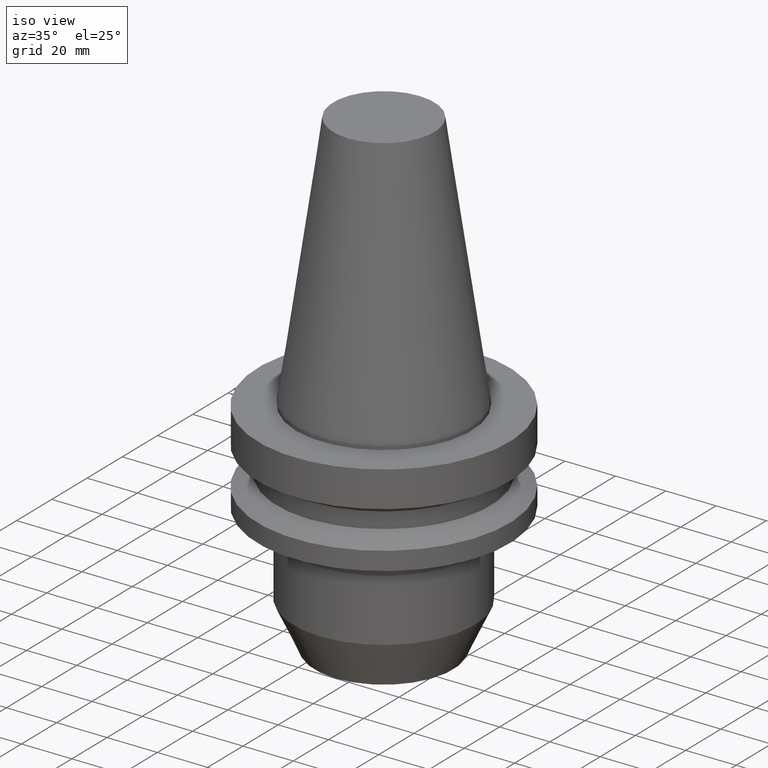
[diagram: clean part render]
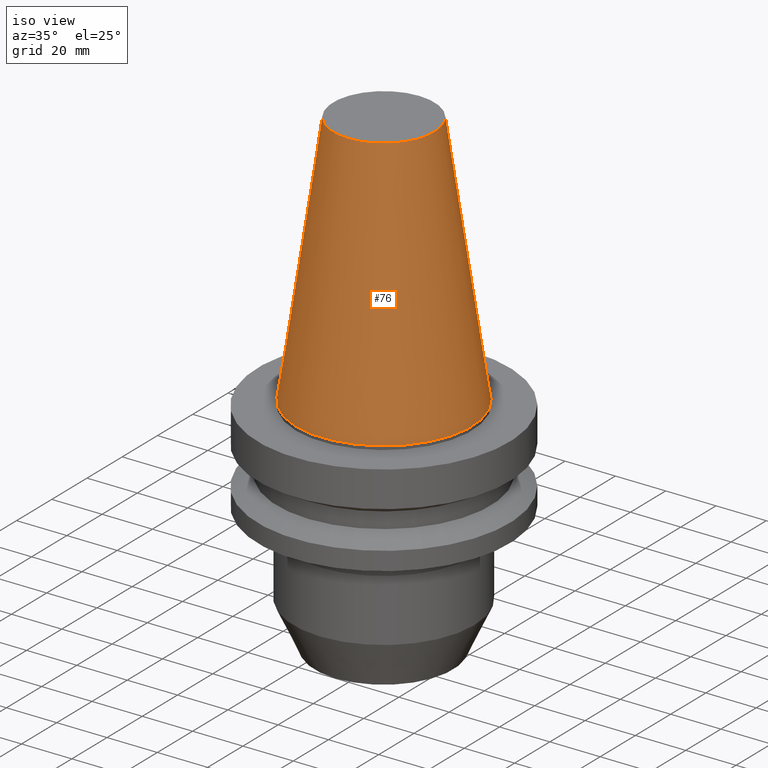
[diagram: tour spotlight — one face highlighted and labeled with its STEP entity id]
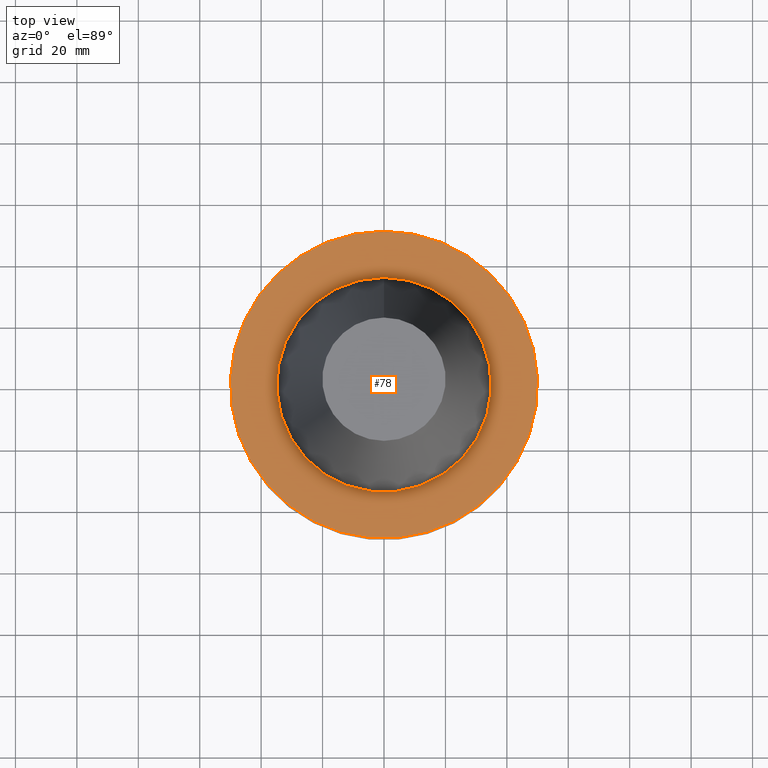
[diagram: tour spotlight — one face highlighted and labeled with its STEP entity id]
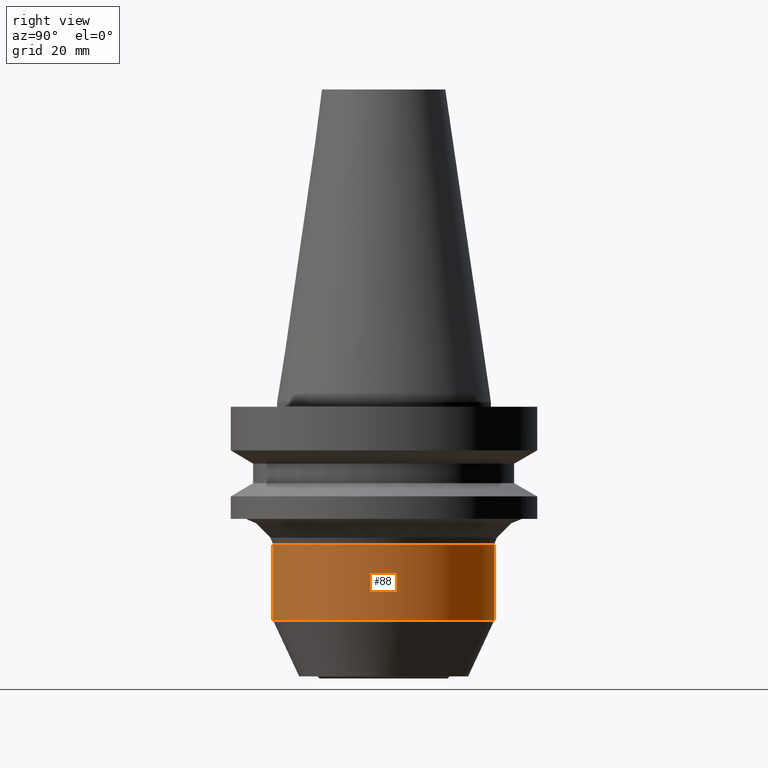
[diagram: tour spotlight — one face highlighted and labeled with its STEP entity id]
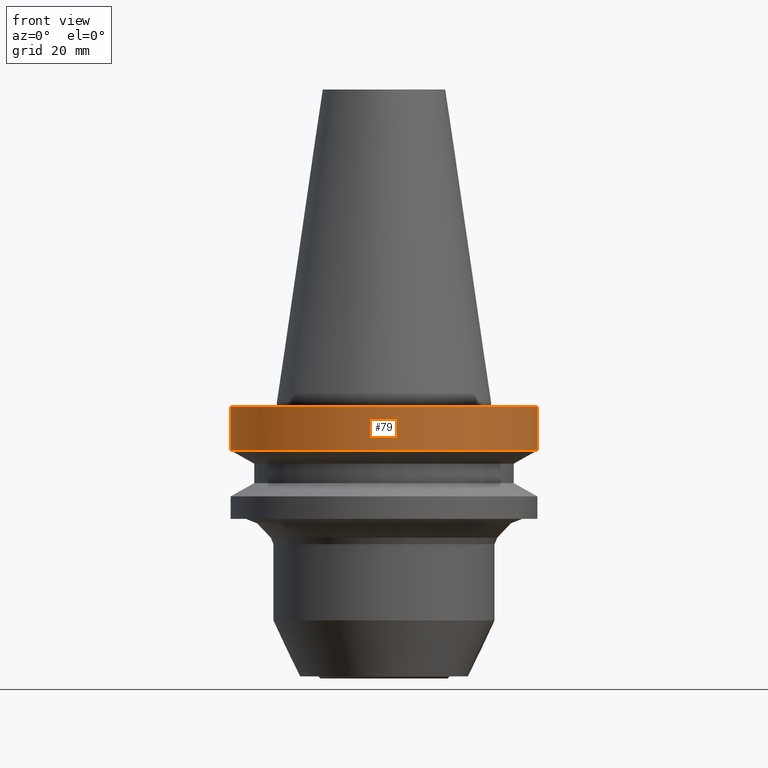
[diagram: tour spotlight — one face highlighted and labeled with its STEP entity id]
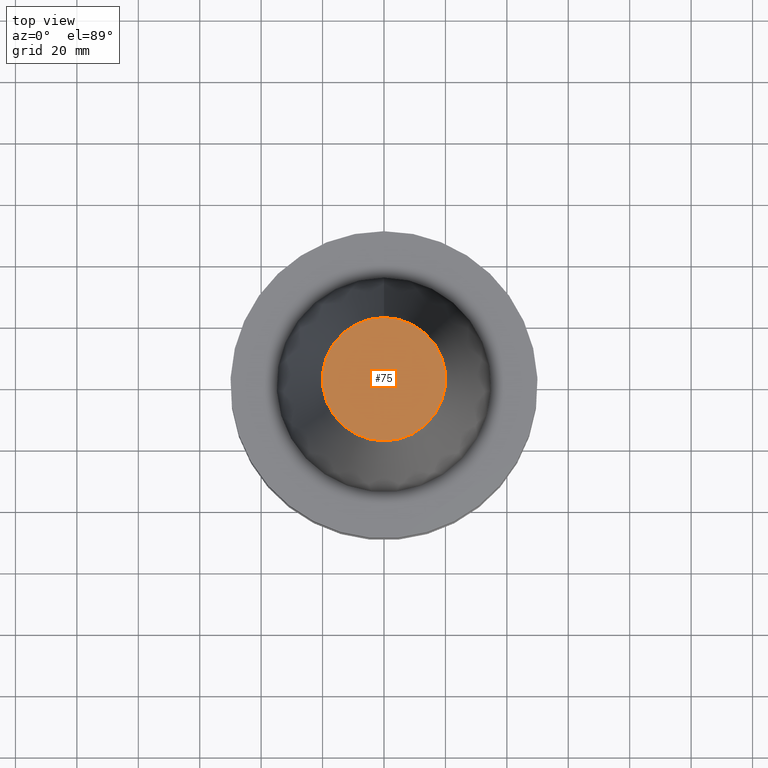
[diagram: tour spotlight — one face highlighted and labeled with its STEP entity id]
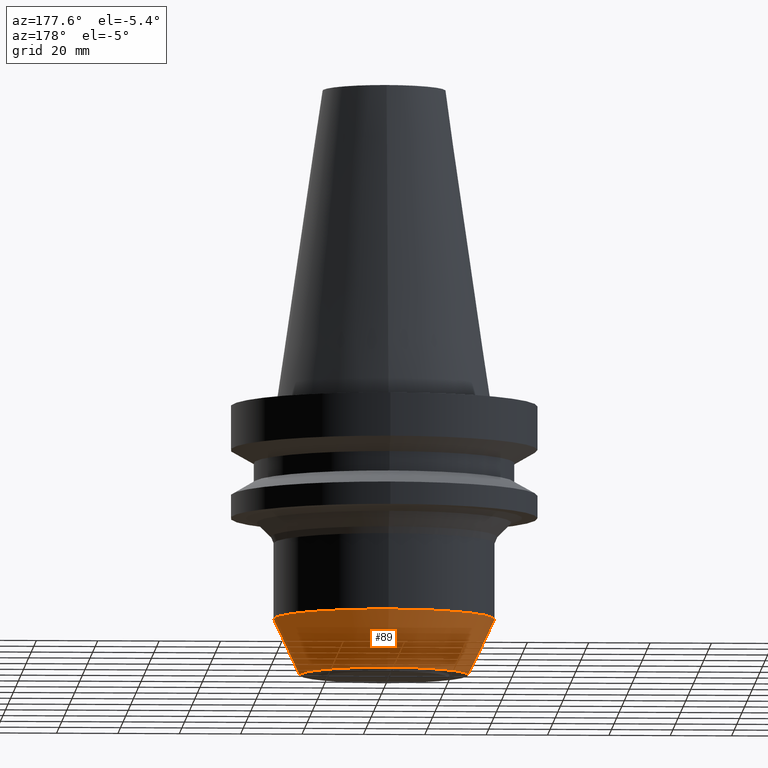
[diagram: tour spotlight — one face highlighted and labeled with its STEP entity id]
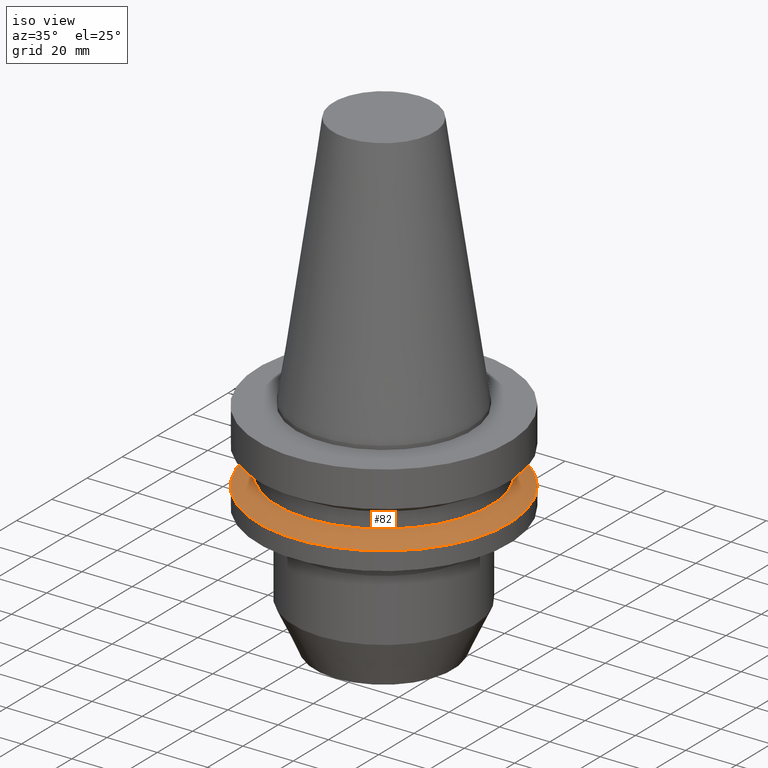
[diagram: tour spotlight — one face highlighted and labeled with its STEP entity id]
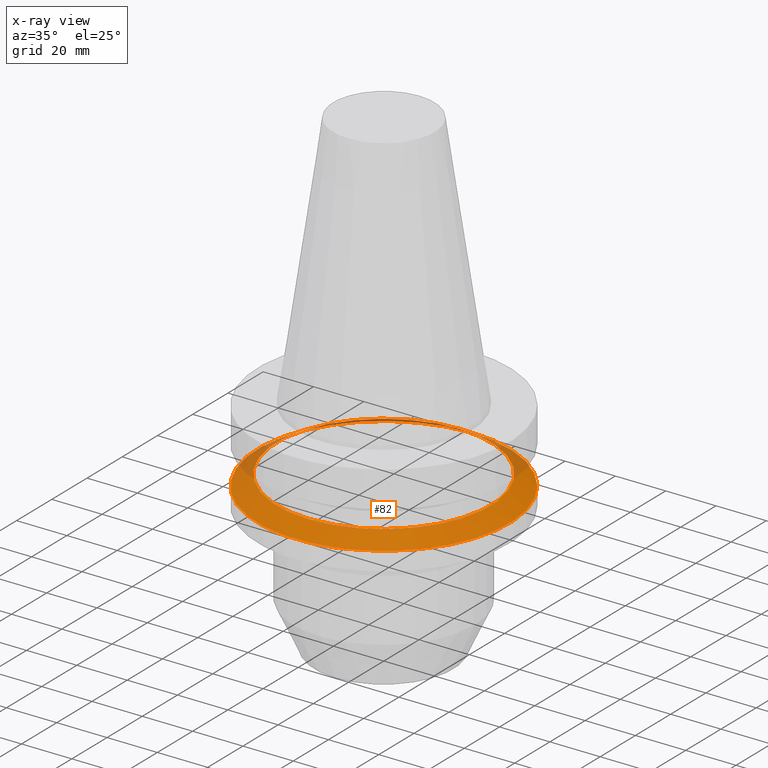
[diagram: x-ray of the same camera — body ghosted, this tour face saturated]
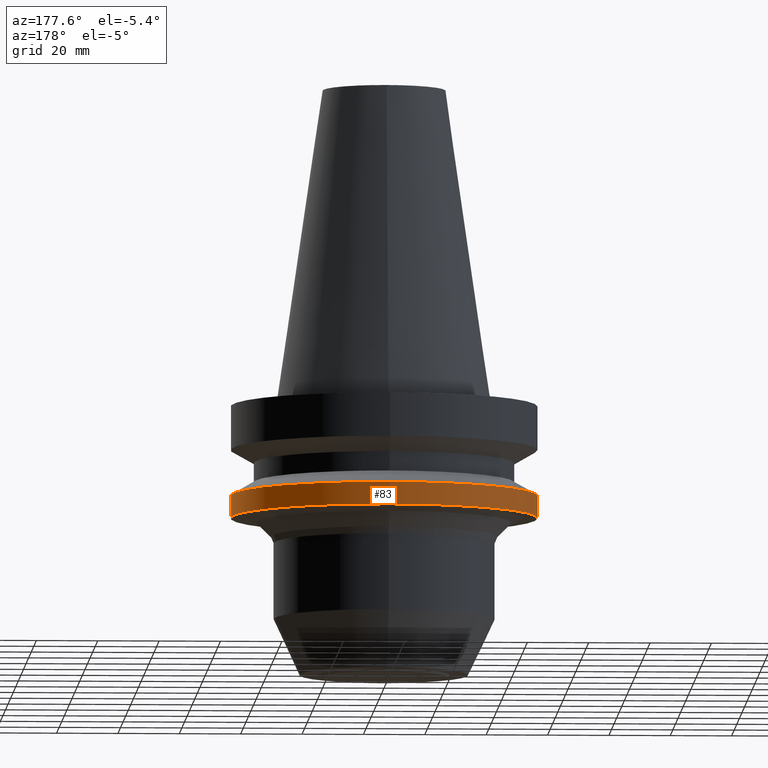
[diagram: tour spotlight — one face highlighted and labeled with its STEP entity id]
A machine part: a face-by-face anatomy tour. The part has 18 B-rep faces; the first image is the clean iso view, then the 8 largest visible faces are spotlighted one at a time (largest first), each with its STEP entity span.

Face 1 — iso view, entity #76. In plain terms, the highlighted conical surface has half-angle 8.297 deg.
Definition (entity closure, byte-faithful):
#76=ADVANCED_FACE('',(#96,#97),#98,.T.);
#96=FACE_BOUND('',#148,.T.);
#97=FACE_BOUND('',#149,.T.);
#98=CONICAL_SURFACE('',#150,27.5020833333334,0.144812498238939);
#148=EDGE_LOOP('',(#202));
#149=EDGE_LOOP('',(#203));
#150=AXIS2_PLACEMENT_3D('',#204,#205,#206);
#202=ORIENTED_EDGE('',*,*,#287,.F.);
#203=ORIENTED_EDGE('',*,*,#286,.T.);
#204=CARTESIAN_POINT('',(-3.11672610383001E-015,-6.23345220766003E-015,50.9));
#205=DIRECTION('',(6.12323399573677E-017,1.22464679914677E-016,-1.0));
#206=DIRECTION('',(-1.23259516440813E-032,1.0,1.22464679914677E-016));
#286=EDGE_CURVE('',#303,#303,#304,.T.);
#287=EDGE_CURVE('',#305,#305,#306,.T.);
#303=VERTEX_POINT('',#337);
#304=CIRCLE('',#338,20.0791666666667);
#305=VERTEX_POINT('',#339);
#306=CIRCLE('',#340,34.925);
#337=CARTESIAN_POINT('',(-6.23345220766003E-015,20.0791666666667,101.8));
#338=AXIS2_PLACEMENT_3D('',#371,#372,#373);
#339=CARTESIAN_POINT('',(-4.30483861169435E-031,34.925,4.27707894602213E-015));
#340=AXIS2_PLACEMENT_3D('',#374,#375,#376);
#371=CARTESIAN_POINT('',(-6.23345220766003E-015,-1.24669044153201E-014,101.8));
#372=DIRECTION('',(6.12323399573677E-017,1.22464679914708E-016,-1.0));
#373=DIRECTION('',(-1.23259516440804E-032,1.0,1.22464679914708E-016));
#374=CARTESIAN_POINT('',(0.0,0.0,0.0));
#375=DIRECTION('',(6.12323399573677E-017,1.22464679914705E-016,-1.0));
#376=DIRECTION('',(-1.23259516440793E-032,1.0,1.22464679914705E-016));

Face 2 — top view, entity #78. In plain terms, the highlighted planar face has unit normal (-0, 0, 1).
Definition (entity closure, byte-faithful):
#78=ADVANCED_FACE('',(#102,#103),#104,.T.);
#102=FACE_OUTER_BOUND('',#154,.T.);
#103=FACE_BOUND('',#155,.T.);
#104=PLANE('',#156);
#154=EDGE_LOOP('',(#212));
#155=EDGE_LOOP('',(#213));
#156=AXIS2_PLACEMENT_3D('',#214,#215,#216);
#212=ORIENTED_EDGE('',*,*,#289,.F.);
#213=ORIENTED_EDGE('',*,*,#288,.T.);
#214=CARTESIAN_POINT('',(9.18485099360522E-017,42.4625,-1.50000000000002));
#215=DIRECTION('',(-6.12323399573677E-017,1.04115215518162E-015,1.0));
#216=DIRECTION('',(-5.89250299826577E-032,-1.0,1.04115215518162E-015));
#288=EDGE_CURVE('',#307,#307,#308,.T.);
#289=EDGE_CURVE('',#309,#309,#310,.T.);
#307=VERTEX_POINT('',#341);
#308=CIRCLE('',#342,34.925);
#309=VERTEX_POINT('',#343);
#310=CIRCLE('',#344,50.0);
#341=CARTESIAN_POINT('',(9.18485099360518E-017,34.925,-1.50000000000001));
#342=AXIS2_PLACEMENT_3D('',#377,#378,#379);
#343=CARTESIAN_POINT('',(9.18485099360527E-017,50.0,-1.50000000000002));
#344=AXIS2_PLACEMENT_3D('',#380,#381,#382);
#377=CARTESIAN_POINT('',(9.18485099360524E-017,1.83697019872105E-016,-1.50000000000001));
#378=DIRECTION('',(6.12323399573677E-017,1.22464679914705E-016,-1.0));
#379=DIRECTION('',(-1.23259516440793E-032,1.0,1.22464679914705E-016));
#380=CARTESIAN_POINT('',(9.18485099360532E-017,1.83697019872106E-016,-1.50000000000003));
#381=DIRECTION('',(6.12323399573677E-017,1.22464679914736E-016,-1.0));
#382=DIRECTION('',(-1.23259516440783E-032,1.0,1.22464679914736E-016));

Face 3 — right view, entity #88. In plain terms, the highlighted cylindrical surface (bore or boss wall) has radius 36 mm, axis along (-0, -0, 1).
Definition (entity closure, byte-faithful):
#88=ADVANCED_FACE('',(#132,#133),#134,.T.);
#132=FACE_BOUND('',#184,.T.);
#133=FACE_BOUND('',#185,.T.);
#134=CYLINDRICAL_SURFACE('',#186,35.9999999999971);
#184=EDGE_LOOP('',(#262));
#185=EDGE_LOOP('',(#263));
#186=AXIS2_PLACEMENT_3D('',#264,#265,#266);
#262=ORIENTED_EDGE('',*,*,#299,.F.);
#263=ORIENTED_EDGE('',*,*,#298,.T.);
#264=CARTESIAN_POINT('',(3.59171552524715E-015,7.1834310504943E-015,-58.6571659313991));
#265=DIRECTION('',(-6.12323399573677E-017,-1.22464679914703E-016,1.0));
#266=DIRECTION('',(-1.23259516440793E-032,1.0,1.22464679914703E-016));
#298=EDGE_CURVE('',#327,#327,#328,.T.);
#299=EDGE_CURVE('',#329,#329,#330,.T.);
#327=VERTEX_POINT('',#361);
#328=CIRCLE('',#362,35.9999999999977);
#329=VERTEX_POINT('',#363);
#330=CIRCLE('',#364,35.9999999999965);
#361=CARTESIAN_POINT('',(2.83154509508027E-015,35.9999999999977,-46.2426406871223));
#362=AXIS2_PLACEMENT_3D('',#407,#408,#409);
#363=CARTESIAN_POINT('',(4.35188595541403E-015,35.9999999999965,-71.0716911756759));
#364=AXIS2_PLACEMENT_3D('',#410,#411,#412);
#407=CARTESIAN_POINT('',(2.83154509508027E-015,5.66309019016055E-015,-46.2426406871223));
#408=DIRECTION('',(6.12323399573677E-017,1.22464679914701E-016,-1.0));
#409=DIRECTION('',(-1.23259516440791E-032,1.0,1.22464679914701E-016));
#410=CARTESIAN_POINT('',(4.35188595541403E-015,8.70377191082806E-015,-71.0716911756759));
#411=DIRECTION('',(6.12323399573677E-017,1.22464679914705E-016,-1.0));
#412=DIRECTION('',(-1.23259516440795E-032,1.0,1.22464679914705E-016));

Face 4 — front view, entity #79. In plain terms, the highlighted cylindrical surface (bore or boss wall) has radius 50 mm, axis along (-0, -0, 1).
Definition (entity closure, byte-faithful):
#79=ADVANCED_FACE('',(#105,#106),#107,.T.);
#105=FACE_BOUND('',#157,.T.);
#106=FACE_BOUND('',#158,.T.);
#107=CYLINDRICAL_SURFACE('',#159,50.0);
#157=EDGE_LOOP('',(#217));
#158=EDGE_LOOP('',(#218));
#159=AXIS2_PLACEMENT_3D('',#219,#220,#221);
#217=ORIENTED_EDGE('',*,*,#290,.F.);
#218=ORIENTED_EDGE('',*,*,#289,.T.);
#219=CARTESIAN_POINT('',(5.26598123633362E-016,1.05319624726672E-015,-8.59999999999999));
#220=DIRECTION('',(-6.12323399573677E-017,-1.22464679914736E-016,1.0));
#221=DIRECTION('',(-1.23259516440783E-032,1.0,1.22464679914736E-016));
#289=EDGE_CURVE('',#309,#309,#310,.T.);
#290=EDGE_CURVE('',#311,#311,#312,.T.);
#309=VERTEX_POINT('',#343);
#310=CIRCLE('',#344,50.0);
#311=VERTEX_POINT('',#345);
#312=CIRCLE('',#346,50.0);
#343=CARTESIAN_POINT('',(9.18485099360527E-017,50.0,-1.50000000000002));
#344=AXIS2_PLACEMENT_3D('',#380,#381,#382);
#345=CARTESIAN_POINT('',(9.61347737330669E-016,50.0,-15.7));
#346=AXIS2_PLACEMENT_3D('',#383,#384,#385);
#380=CARTESIAN_POINT('',(9.18485099360532E-017,1.83697019872106E-016,-1.50000000000003));
#381=DIRECTION('',(6.12323399573677E-017,1.22464679914736E-016,-1.0));
#382=DIRECTION('',(-1.23259516440783E-032,1.0,1.22464679914736E-016));
#383=CARTESIAN_POINT('',(9.6134773733067E-016,1.92269547466134E-015,-15.7));
#384=DIRECTION('',(6.12323399573677E-017,1.22464679914736E-016,-1.0));
#385=DIRECTION('',(-1.23259516440783E-032,1.0,1.22464679914736E-016));

Face 5 — top view, entity #75. In plain terms, the highlighted planar face has unit normal (-0, -0, 1).
Definition (entity closure, byte-faithful):
#75=ADVANCED_FACE('',(#94),#95,.T.);
#94=FACE_OUTER_BOUND('',#146,.T.);
#95=PLANE('',#147);
#146=EDGE_LOOP('',(#198));
#147=AXIS2_PLACEMENT_3D('',#199,#200,#201);
#198=ORIENTED_EDGE('',*,*,#286,.F.);
#199=CARTESIAN_POINT('',(-6.23345220766003E-015,10.0395833333333,101.8));
#200=DIRECTION('',(-6.12323399573677E-017,-1.22464679914735E-016,1.0));
#201=DIRECTION('',(1.23259516440783E-032,-1.0,-1.22464679914735E-016));
#286=EDGE_CURVE('',#303,#303,#304,.T.);
#303=VERTEX_POINT('',#337);
#304=CIRCLE('',#338,20.0791666666667);
#337=CARTESIAN_POINT('',(-6.23345220766003E-015,20.0791666666667,101.8));
#338=AXIS2_PLACEMENT_3D('',#371,#372,#373);
#371=CARTESIAN_POINT('',(-6.23345220766003E-015,-1.24669044153201E-014,101.8));
#372=DIRECTION('',(6.12323399573677E-017,1.22464679914708E-016,-1.0));
#373=DIRECTION('',(-1.23259516440804E-032,1.0,1.22464679914708E-016));

Face 6 — auxiliary view, entity #89. In plain terms, the highlighted conical surface has half-angle 25 deg.
Definition (entity closure, byte-faithful):
#89=ADVANCED_FACE('',(#135,#136),#137,.T.);
#135=FACE_BOUND('',#187,.T.);
#136=FACE_BOUND('',#188,.T.);
#137=CONICAL_SURFACE('',#189,31.7499999999979,0.43633231299857);
#187=EDGE_LOOP('',(#267));
#188=EDGE_LOOP('',(#268));
#189=AXIS2_PLACEMENT_3D('',#269,#270,#271);
#267=ORIENTED_EDGE('',*,*,#300,.F.);
#268=ORIENTED_EDGE('',*,*,#299,.T.);
#269=CARTESIAN_POINT('',(4.90996695680353E-015,9.81993391360705E-015,-80.1858455878387));
#270=DIRECTION('',(-6.12323399573676E-017,-1.22464679914722E-016,1.0));
#271=DIRECTION('',(-1.23259516440791E-032,1.0,1.22464679914722E-016));
#299=EDGE_CURVE('',#329,#329,#330,.T.);
#300=EDGE_CURVE('',#331,#331,#332,.T.);
#329=VERTEX_POINT('',#363);
#330=CIRCLE('',#364,35.9999999999965);
#331=VERTEX_POINT('',#365);
#332=CIRCLE('',#366,27.4999999999994);
#363=CARTESIAN_POINT('',(4.35188595541403E-015,35.9999999999965,-71.0716911756759));
#364=AXIS2_PLACEMENT_3D('',#410,#411,#412);
#365=CARTESIAN_POINT('',(5.46804795819302E-015,27.4999999999994,-89.3000000000015));
#366=AXIS2_PLACEMENT_3D('',#413,#414,#415);
#410=CARTESIAN_POINT('',(4.35188595541403E-015,8.70377191082806E-015,-71.0716911756759));
#411=DIRECTION('',(6.12323399573677E-017,1.22464679914705E-016,-1.0));
#412=DIRECTION('',(-1.23259516440795E-032,1.0,1.22464679914705E-016));
#413=CARTESIAN_POINT('',(5.46804795819302E-015,1.0936095916386E-014,-89.3000000000015));
#414=DIRECTION('',(6.12323399573677E-017,1.22464679914745E-016,-1.0));
#415=DIRECTION('',(-1.23259516440786E-032,1.0,1.22464679914745E-016));

Face 7 — iso view, entity #82. An x-ray twin of the same camera follows (body ghosted, this face saturated) — the face is partly hidden behind the body. In plain terms, the highlighted conical surface has half-angle 60 deg.
Definition (entity closure, byte-faithful):
#82=ADVANCED_FACE('',(#114,#115),#116,.T.);
#114=FACE_BOUND('',#166,.T.);
#115=FACE_BOUND('',#167,.T.);
#116=CONICAL_SURFACE('',#168,46.25,1.0471975511966);
#166=EDGE_LOOP('',(#232));
#167=EDGE_LOOP('',(#233));
#168=AXIS2_PLACEMENT_3D('',#234,#235,#236);
#232=ORIENTED_EDGE('',*,*,#293,.F.);
#233=ORIENTED_EDGE('',*,*,#292,.T.);
#234=CARTESIAN_POINT('',(1.74726093185057E-015,3.49452186370114E-015,-28.5349364905389));
#235=DIRECTION('',(6.12323399573677E-017,1.22464679914748E-016,-1.0));
#236=DIRECTION('',(-1.23259516440783E-032,1.0,1.22464679914748E-016));
#292=EDGE_CURVE('',#315,#315,#316,.T.);
#293=EDGE_CURVE('',#317,#317,#318,.T.);
#315=VERTEX_POINT('',#349);
#316=CIRCLE('',#350,42.5);
#317=VERTEX_POINT('',#351);
#318=CIRCLE('',#352,50.0);
#349=CARTESIAN_POINT('',(1.61468902700996E-015,42.5,-26.3698729810777));
#350=AXIS2_PLACEMENT_3D('',#389,#390,#391);
#351=CARTESIAN_POINT('',(1.87983283669118E-015,50.0,-30.7));
#352=AXIS2_PLACEMENT_3D('',#392,#393,#394);
#389=CARTESIAN_POINT('',(1.61468902700996E-015,3.22937805401991E-015,-26.3698729810777));
#390=DIRECTION('',(6.12323399573677E-017,1.22464679914763E-016,-1.0));
#391=DIRECTION('',(-1.23259516440783E-032,1.0,1.22464679914763E-016));
#392=CARTESIAN_POINT('',(1.87983283669118E-015,3.75966567338237E-015,-30.7));
#393=DIRECTION('',(6.12323399573677E-017,1.22464679914736E-016,-1.0));
#394=DIRECTION('',(-1.23259516440783E-032,1.0,1.22464679914736E-016));

Face 8 — auxiliary view, entity #83. In plain terms, the highlighted cylindrical surface (bore or boss wall) has radius 50 mm, axis along (-0, -0, 1).
Definition (entity closure, byte-faithful):
#83=ADVANCED_FACE('',(#117,#118),#119,.T.);
#117=FACE_BOUND('',#169,.T.);
#118=FACE_BOUND('',#170,.T.);
#119=CYLINDRICAL_SURFACE('',#171,50.0);
#169=EDGE_LOOP('',(#237));
#170=EDGE_LOOP('',(#238));
#171=AXIS2_PLACEMENT_3D('',#239,#240,#241);
#237=ORIENTED_EDGE('',*,*,#294,.F.);
#238=ORIENTED_EDGE('',*,*,#293,.T.);
#239=CARTESIAN_POINT('',(2.10333087753558E-015,4.20666175507115E-015,-34.35));
#240=DIRECTION('',(-6.12323399573677E-017,-1.22464679914736E-016,1.0));
#241=DIRECTION('',(-1.23259516440783E-032,1.0,1.22464679914736E-016));
#293=EDGE_CURVE('',#317,#317,#318,.T.);
#294=EDGE_CURVE('',#319,#319,#320,.T.);
#317=VERTEX_POINT('',#351);
#318=CIRCLE('',#352,50.0);
#319=VERTEX_POINT('',#353);
#320=CIRCLE('',#354,50.0);
#351=CARTESIAN_POINT('',(1.87983283669118E-015,50.0,-30.7));
#352=AXIS2_PLACEMENT_3D('',#392,#393,#394);
#353=CARTESIAN_POINT('',(2.32682891837997E-015,50.0,-38.0));
#354=AXIS2_PLACEMENT_3D('',#395,#396,#397);
#392=CARTESIAN_POINT('',(1.87983283669118E-015,3.75966567338237E-015,-30.7));
#393=DIRECTION('',(6.12323399573677E-017,1.22464679914736E-016,-1.0));
#394=DIRECTION('',(-1.23259516440783E-032,1.0,1.22464679914736E-016));
#395=CARTESIAN_POINT('',(2.32682891837997E-015,4.65365783675994E-015,-38.0));
#396=DIRECTION('',(6.12323399573677E-017,1.22464679914736E-016,-1.0));
#397=DIRECTION('',(-1.23259516440783E-032,1.0,1.22464679914736E-016));